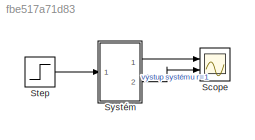
MODEL slx_fbe517a71d83
KIND model
CONFIG AbsTol = auto
CONFIG EnableMultiTasking = off
CONFIG FixedStep = auto
CONFIG MaxStep = auto
CONFIG MinStep = auto
CONFIG RelTol = 1e-3
CONFIG SampleTimeConstraint = Unconstrained
CONFIG Solver = VariableStepAuto
CONFIG SolverName = VariableStepAuto
CONFIG StartTime = 0.0
CONFIG StopTime = 10.0
BLOCK [Scope] Scope
  Floating = off
  NumInputPorts = 2
  Ports = [2]
  ScopeSpecificationString = Simulink.scopes.TimeScopeBlockCfg('CurrentConfiguration', extmgr.ConfigurationSet(extmgr.Configuration('Core','General UI',true),extmgr.Configuration('Core','Source UI',true),extmgr.Configuration('Sources','WiredSimulink',true),extmgr.Configuration('Visuals','Time Domain',true,'SerializedDisplays',{struct('MinYLimReal','-6.45617','MaxYLimReal','58.10557','YLabelReal','','MinYLimMag','0.00000','Max...<+1383ch>
BLOCK [Step] Step
  SampleTime = 0
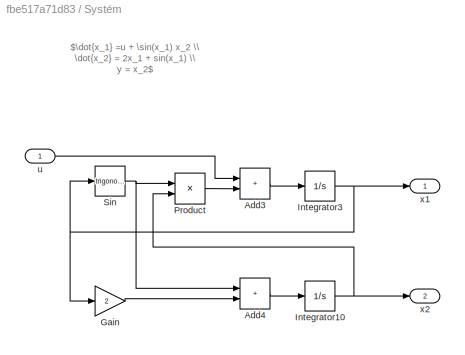
BLOCK [SubSystem] Systém
  Ports = [1, 2]
  RequestExecContextInheritance = off
BLOCK [Sum] Systém/Add3
  IconShape = rectangular
  Ports = [2, 1]
BLOCK [Sum] Systém/Add4
  IconShape = rectangular
  Ports = [2, 1]
BLOCK [Gain] Systém/Gain
  Gain = 2
BLOCK [Integrator] Systém/Integrator10
  Ports = [1, 1]
BLOCK [Integrator] Systém/Integrator3
  Ports = [1, 1]
BLOCK [Product] Systém/Product
  Ports = [2, 1]
BLOCK [Trigonometry] Systém/Sin
  Ports = [1, 1]
BLOCK [Inport] Systém/u
BLOCK [Outport] Systém/x1
BLOCK [Outport] Systém/x2
  Port = 2
ANNOTATION Systém: $\dot{x_1} =u + \sin(x_1) x_2 \\ \dot{x_2} = 2x_1 + sin(x_1) \\ y = x_2$
LINE Step:1 -> Systém:1
LINE Systém/Add3:1 -> Systém/Integrator3:1
LINE Systém/Add4:1 -> Systém/Integrator10:1
LINE Systém/Gain:1 -> Systém/Add4:2
NET Systém/Integrator10:1 -> Systém/Product:2, Systém/x2:1
NET Systém/Integrator3:1 -> Systém/Gain:1, Systém/Sin:1, Systém/x1:1
LINE Systém/Product:1 -> Systém/Add3:2
NET Systém/Sin:1 -> Systém/Add4:1, Systém/Product:1
LINE Systém/u:1 -> Systém/Add3:1
LINE Systém:1 -> Scope:1
LINE Systém:2 -> Scope:2
note: NET lines group one-source signal fan-out (src -> all destinations, sorted); 1:1 wires keep LINE
